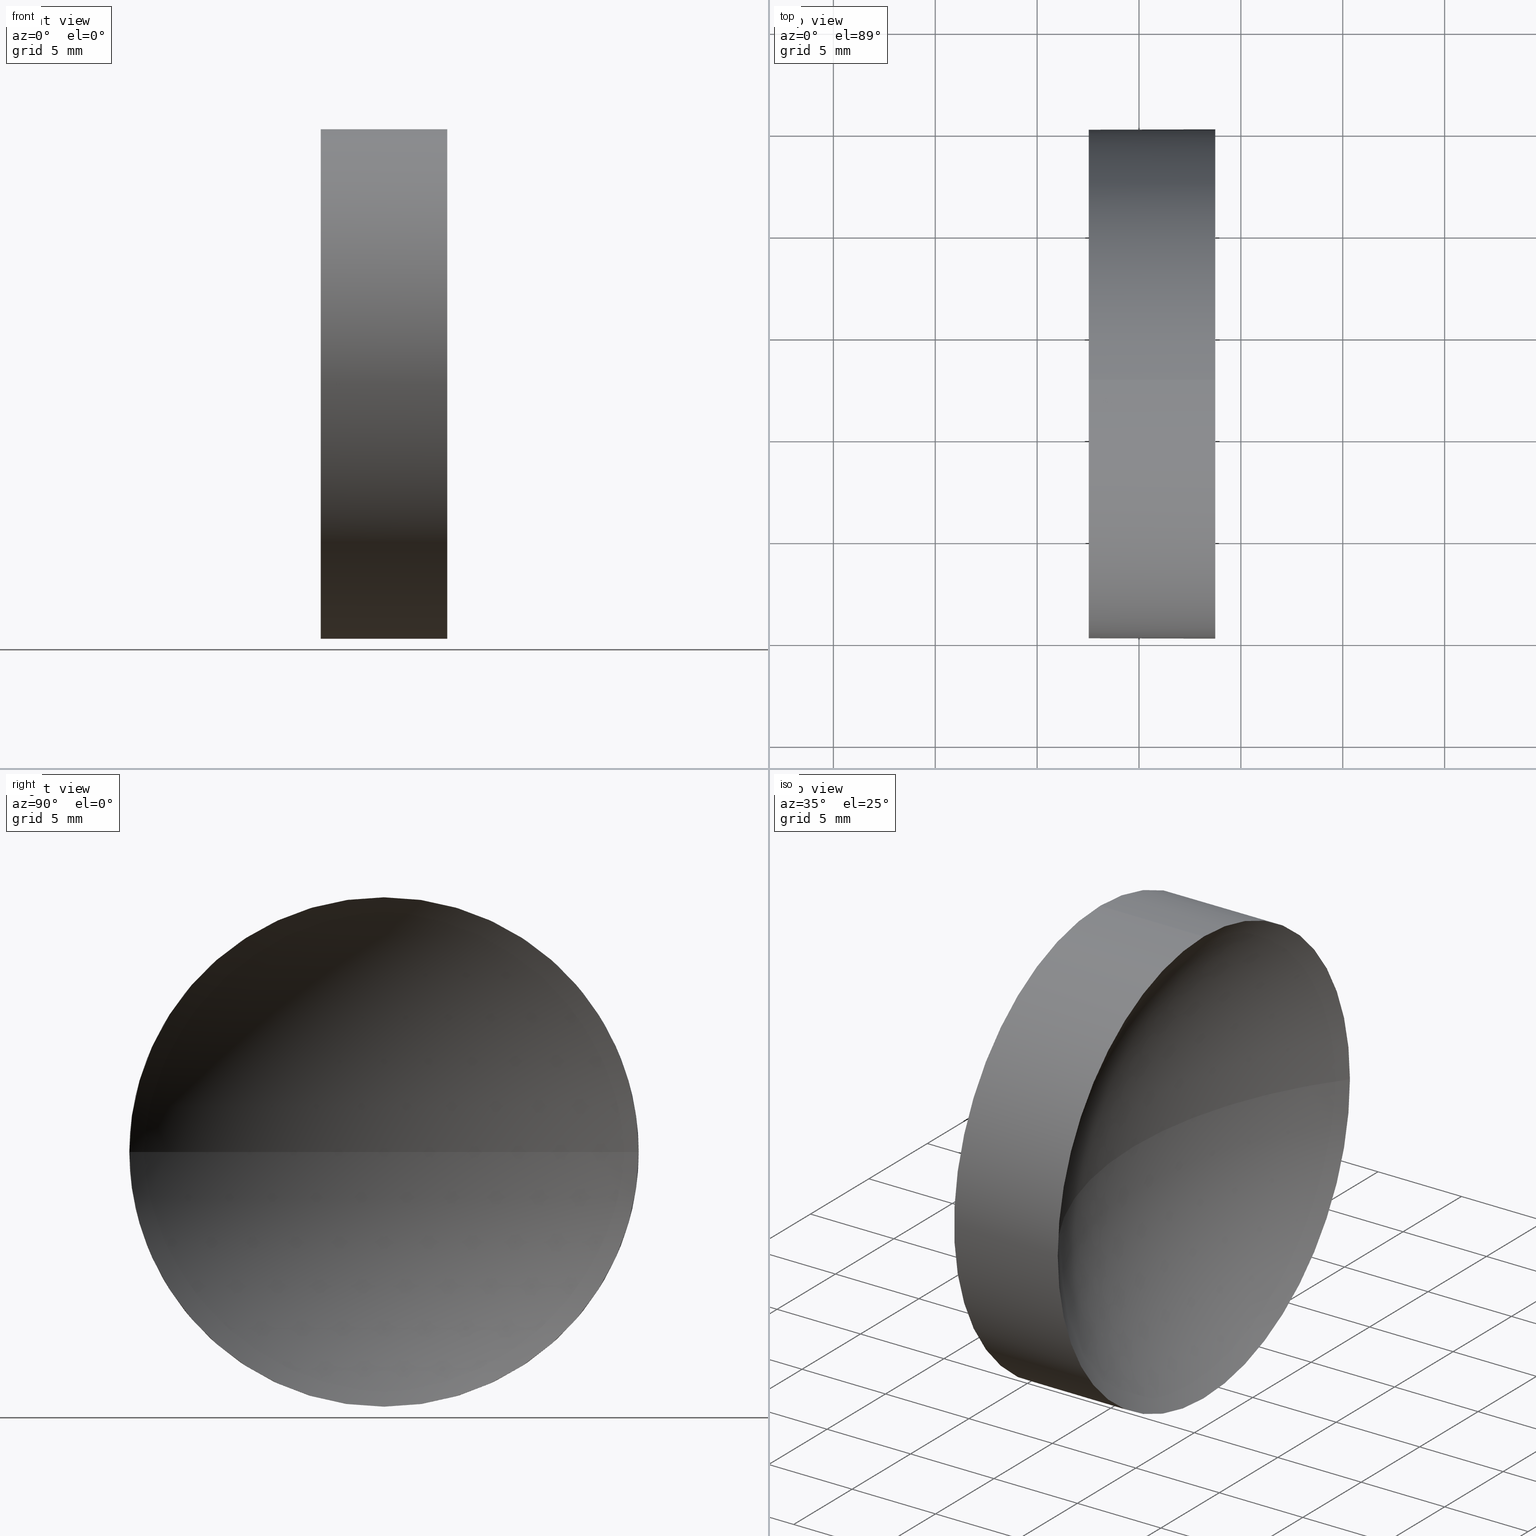
[diagram: canonical four-view strip — front | top / right | iso, engineering-drawing reading convention]
A machine part, canonical four-view strip (front | top / right | iso — engineering-drawing reading convention). The complete STEP part file that produces these views, byte-faithful:
ISO-10303-21;
HEADER;
FILE_DESCRIPTION (( 'STEP AP214' ),
    '1' );
FILE_NAME ('120031.STEP',
    '2019-06-17T02:37:05',
    ( '' ),
    ( '' ),
    'SwSTEP 2.0',
    'SolidWorks 2016',
    '' );
FILE_SCHEMA (( 'AUTOMOTIVE_DESIGN' ));
ENDSEC;

DATA;
#1 = DIRECTION ( 'NONE',  ( -1.000000000000000000, -0.0000000000000000000, -0.0000000000000000000 ) ) ;
#2 = STYLED_ITEM ( 'NONE', ( #40 ), #111 ) ;
#3 = DIRECTION ( 'NONE',  ( 0.0000000000000000000, 0.0000000000000000000, 1.000000000000000000 ) ) ;
#4 = CIRCLE ( 'NONE', #84, 20.65000000000000200 ) ;
#5 = FILL_AREA_STYLE_COLOUR ( '', #110 ) ;
#6 = EDGE_LOOP ( 'NONE', ( #82, #152, #34, #138 ) ) ;
#7 =( LENGTH_UNIT ( ) NAMED_UNIT ( * ) SI_UNIT ( .MILLI., .METRE. ) );
#8 = DIRECTION ( 'NONE',  ( 0.0000000000000000000, 0.0000000000000000000, 1.000000000000000000 ) ) ;
#9 = CIRCLE ( 'NONE', #39, 12.49999999999999600 ) ;
#10 = EDGE_CURVE ( 'NONE', #161, #37, #140, .T. ) ;
#11 = CIRCLE ( 'NONE', #94, 20.65000000000000200 ) ;
#12 = FACE_OUTER_BOUND ( 'NONE', #6, .T. ) ;
#13 = SURFACE_STYLE_FILL_AREA ( #65 ) ;
#14 = ORIENTED_EDGE ( 'NONE', *, *, #24, .F. ) ;
#15 = ORIENTED_EDGE ( 'NONE', *, *, #173, .T. ) ;
#16 = CARTESIAN_POINT ( 'NONE',  ( 80.18233705252612300, 32.61076812922678400, 0.0000000000000000000 ) ) ;
#17 = DIRECTION ( 'NONE',  ( 0.0000000000000000000, 0.0000000000000000000, 1.000000000000000000 ) ) ;
#18 = SPHERICAL_SURFACE ( 'NONE', #184, 20.65000000000000200 ) ;
#19 = ORIENTED_EDGE ( 'NONE', *, *, #38, .T. ) ;
#20 =( LENGTH_UNIT ( ) NAMED_UNIT ( * ) SI_UNIT ( .MILLI., .METRE. ) );
#21 = APPLICATION_PROTOCOL_DEFINITION ( 'draft international standard', 'automotive_design', 1998, #176 ) ;
#22 = CYLINDRICAL_SURFACE ( 'NONE', #81, 12.49999999999999600 ) ;
#23 = VERTEX_POINT ( 'NONE', #115 ) ;
#24 = EDGE_CURVE ( 'NONE', #23, #183, #171, .T. ) ;
#25 = MECHANICAL_DESIGN_GEOMETRIC_PRESENTATION_REPRESENTATION (  '', ( #105 ), #164 ) ;
#26 = ORIENTED_EDGE ( 'NONE', *, *, #10, .T. ) ;
#27 = CARTESIAN_POINT ( 'NONE',  ( 63.74541215764386900, 32.61076812922678400, -12.49999999999999600 ) ) ;
#28 = CARTESIAN_POINT ( 'NONE',  ( 57.53233705252611700, 32.61076812922678400, 0.0000000000000000000 ) ) ;
#29 = ORIENTED_EDGE ( 'NONE', *, *, #185, .F. ) ;
#30 = EDGE_CURVE ( 'NONE', #101, #161, #95, .T. ) ;
#31 = PRESENTATION_LAYER_ASSIGNMENT (  '', '', ( #105 ) ) ;
#32 = DIRECTION ( 'NONE',  ( 0.0000000000000000000, 0.0000000000000000000, 1.000000000000000000 ) ) ;
#33 = DIRECTION ( 'NONE',  ( 0.0000000000000000000, -1.224646799147353200E-016, 1.000000000000000000 ) ) ;
#34 = ORIENTED_EDGE ( 'NONE', *, *, #67, .F. ) ;
#35 = DIRECTION ( 'NONE',  ( -1.000000000000000000, -0.0000000000000000000, -0.0000000000000000000 ) ) ;
#36 = DIRECTION ( 'NONE',  ( -1.000000000000000000, -0.0000000000000000000, -0.0000000000000000000 ) ) ;
#37 = VERTEX_POINT ( 'NONE', #27 ) ;
#38 = EDGE_CURVE ( 'NONE', #157, #101, #126, .T. ) ;
#39 = AXIS2_PLACEMENT_3D ( 'NONE', #28, #1, #104 ) ;
#40 = PRESENTATION_STYLE_ASSIGNMENT (( #64 ) ) ;
#41 = CYLINDRICAL_SURFACE ( 'NONE', #63, 12.49999999999999600 ) ;
#42 =( NAMED_UNIT ( * ) SI_UNIT ( $, .STERADIAN. ) SOLID_ANGLE_UNIT ( ) );
#43 = VECTOR ( 'NONE', #145, 1000.000000000000000 ) ;
#44 = AXIS2_PLACEMENT_3D ( 'NONE', #77, #146, #60 ) ;
#45 = DIRECTION ( 'NONE',  ( 0.0000000000000000000, 0.0000000000000000000, 1.000000000000000000 ) ) ;
#46 = CARTESIAN_POINT ( 'NONE',  ( 56.10091507999716500, 32.61076812922678400, -12.49999999999999600 ) ) ;
#47 = EDGE_CURVE ( 'NONE', #101, #23, #137, .T. ) ;
#48 = DIRECTION ( 'NONE',  ( 0.0000000000000000000, 0.0000000000000000000, 1.000000000000000000 ) ) ;
#49 = CARTESIAN_POINT ( 'NONE',  ( 56.10091507999716500, 32.61076812922678400, 12.49999999999999600 ) ) ;
#50 = DIRECTION ( 'NONE',  ( 1.000000000000000000, 0.0000000000000000000, 0.0000000000000000000 ) ) ;
#51 = FACE_OUTER_BOUND ( 'NONE', #73, .T. ) ;
#52 = FACE_OUTER_BOUND ( 'NONE', #93, .T. ) ;
#53 = AXIS2_PLACEMENT_3D ( 'NONE', #156, #86, #103 ) ;
#54 = SURFACE_STYLE_FILL_AREA ( #131 ) ;
#55 = CARTESIAN_POINT ( 'NONE',  ( 80.18233705252612300, 32.61076812922678400, 0.0000000000000000000 ) ) ;
#56 = CARTESIAN_POINT ( 'NONE',  ( 57.53233705252611700, 32.61076812922678400, -12.49999999999999600 ) ) ;
#57 = EDGE_LOOP ( 'NONE', ( #29, #15, #19, #181, #123 ) ) ;
#58 = CARTESIAN_POINT ( 'NONE',  ( 0.0000000000000000000, 0.0000000000000000000, 0.0000000000000000000 ) ) ;
#59 = AXIS2_PLACEMENT_3D ( 'NONE', #61, #35, #160 ) ;
#60 = DIRECTION ( 'NONE',  ( 0.0000000000000000000, 0.0000000000000000000, -1.000000000000000000 ) ) ;
#61 = CARTESIAN_POINT ( 'NONE',  ( 63.74541215764386900, 32.61076812922678400, 0.0000000000000000000 ) ) ;
#62 = FACE_OUTER_BOUND ( 'NONE', #57, .T. ) ;
#63 = AXIS2_PLACEMENT_3D ( 'NONE', #149, #178, #3 ) ;
#64 = SURFACE_STYLE_USAGE ( .BOTH. , #136 ) ;
#65 = FILL_AREA_STYLE ('',( #5 ) ) ;
#66 = VERTEX_POINT ( 'NONE', #148 ) ;
#67 = EDGE_CURVE ( 'NONE', #157, #66, #11, .T. ) ;
#68 = ORIENTED_EDGE ( 'NONE', *, *, #166, .T. ) ;
#69 = AXIS2_PLACEMENT_3D ( 'NONE', #58, #8, #50 ) ;
#70 = ADVANCED_FACE ( 'NONE', ( #52 ), #41, .T. ) ;
#71 = ORIENTED_EDGE ( 'NONE', *, *, #30, .T. ) ;
#72 = AXIS2_PLACEMENT_3D ( 'NONE', #133, #134, #48 ) ;
#73 = EDGE_LOOP ( 'NONE', ( #96, #68 ) ) ;
#74 = ADVANCED_FACE ( 'NONE', ( #62 ), #22, .T. ) ;
#75 = DIRECTION ( 'NONE',  ( -1.000000000000000000, -0.0000000000000000000, -0.0000000000000000000 ) ) ;
#76 = SHAPE_DEFINITION_REPRESENTATION ( #97, #111 ) ;
#77 = CARTESIAN_POINT ( 'NONE',  ( 57.53233705252611700, 32.61076812922678400, 0.0000000000000000000 ) ) ;
#78 = FILL_AREA_STYLE_COLOUR ( '', #163 ) ;
#79 =( NAMED_UNIT ( * ) PLANE_ANGLE_UNIT ( ) SI_UNIT ( $, .RADIAN. ) );
#80 = PRODUCT ( '120031', '120031', '', ( #109 ) ) ;
#81 = AXIS2_PLACEMENT_3D ( 'NONE', #172, #114, #32 ) ;
#82 = ORIENTED_EDGE ( 'NONE', *, *, #10, .F. ) ;
#83 = CIRCLE ( 'NONE', #151, 12.49999999999999600 ) ;
#84 = AXIS2_PLACEMENT_3D ( 'NONE', #55, #33, #155 ) ;
#85 = ORIENTED_EDGE ( 'NONE', *, *, #30, .F. ) ;
#86 = DIRECTION ( 'NONE',  ( -1.000000000000000000, -0.0000000000000000000, -0.0000000000000000000 ) ) ;
#87 = DIRECTION ( 'NONE',  ( 0.0000000000000000000, 0.0000000000000000000, -1.000000000000000000 ) ) ;
#88 =( NAMED_UNIT ( * ) SI_UNIT ( $, .STERADIAN. ) SOLID_ANGLE_UNIT ( ) );
#89 = ORIENTED_EDGE ( 'NONE', *, *, #185, .T. ) ;
#90 =( GEOMETRIC_REPRESENTATION_CONTEXT ( 3 ) GLOBAL_UNCERTAINTY_ASSIGNED_CONTEXT ( ( #150 ) ) GLOBAL_UNIT_ASSIGNED_CONTEXT ( ( #168, #79, #88 ) ) REPRESENTATION_CONTEXT ( 'NONE', 'WORKASPACE' ) );
#91 = APPLICATION_PROTOCOL_DEFINITION ( 'draft international standard', 'automotive_design', 1998, #174 ) ;
#92 = DIRECTION ( 'NONE',  ( 0.0000000000000000000, 0.0000000000000000000, 1.000000000000000000 ) ) ;
#93 = EDGE_LOOP ( 'NONE', ( #26, #89, #14, #165, #71 ) ) ;
#94 = AXIS2_PLACEMENT_3D ( 'NONE', #16, #87, #116 ) ;
#95 = CIRCLE ( 'NONE', #59, 12.49999999999999600 ) ;
#96 = ORIENTED_EDGE ( 'NONE', *, *, #24, .T. ) ;
#97 = PRODUCT_DEFINITION_SHAPE ( 'NONE', 'NONE',  #99 ) ;
#98 = VECTOR ( 'NONE', #36, 1000.000000000000000 ) ;
#99 = PRODUCT_DEFINITION ( 'δ֪', '', #124, #179 ) ;
#100 = MANIFOLD_SOLID_BREP ( '��ת1', #177 ) ;
#101 = VERTEX_POINT ( 'NONE', #127 ) ;
#102 =( NAMED_UNIT ( * ) PLANE_ANGLE_UNIT ( ) SI_UNIT ( $, .RADIAN. ) );
#103 = DIRECTION ( 'NONE',  ( 0.0000000000000000000, 0.0000000000000000000, 1.000000000000000000 ) ) ;
#104 = DIRECTION ( 'NONE',  ( 0.0000000000000000000, 0.0000000000000000000, 1.000000000000000000 ) ) ;
#105 = STYLED_ITEM ( 'NONE', ( #117 ), #100 ) ;
#106 = CARTESIAN_POINT ( 'NONE',  ( 63.74541215764386900, 20.11076812922679100, 0.0000000000000000000 ) ) ;
#107 = DIRECTION ( 'NONE',  ( 0.0000000000000000000, -1.000000000000000000, 0.0000000000000000000 ) ) ;
#108 =( NAMED_UNIT ( * ) PLANE_ANGLE_UNIT ( ) SI_UNIT ( $, .RADIAN. ) );
#109 = PRODUCT_CONTEXT ( 'NONE', #174, 'mechanical' ) ;
#110 = COLOUR_RGB ( '',1.000000000000000000, 1.000000000000000000, 1.000000000000000000 ) ;
#111 = ADVANCED_BREP_SHAPE_REPRESENTATION ( '120031', ( #100, #69 ), #90 ) ;
#112 = SPHERICAL_SURFACE ( 'NONE', #182, 20.65000000000000200 ) ;
#113 = AXIS2_PLACEMENT_3D ( 'NONE', #119, #120, #92 ) ;
#114 = DIRECTION ( 'NONE',  ( -1.000000000000000000, -0.0000000000000000000, -0.0000000000000000000 ) ) ;
#115 = CARTESIAN_POINT ( 'NONE',  ( 57.53233705252611700, 32.61076812922678400, 12.49999999999999600 ) ) ;
#116 = DIRECTION ( 'NONE',  ( -1.000000000000000000, 0.0000000000000000000, 0.0000000000000000000 ) ) ;
#117 = PRESENTATION_STYLE_ASSIGNMENT (( #170 ) ) ;
#118 = PLANE ( 'NONE',  #44 ) ;
#119 = CARTESIAN_POINT ( 'NONE',  ( 63.74541215764386900, 32.61076812922678400, 0.0000000000000000000 ) ) ;
#120 = DIRECTION ( 'NONE',  ( -1.000000000000000000, -0.0000000000000000000, -0.0000000000000000000 ) ) ;
#121 = UNCERTAINTY_MEASURE_WITH_UNIT (LENGTH_MEASURE( 1.000000000000000100E-005 ), #7, 'distance_accuracy_value', 'NONE');
#122 = PRODUCT_RELATED_PRODUCT_CATEGORY ( 'part', '', ( #80 ) ) ;
#123 = ORIENTED_EDGE ( 'NONE', *, *, #166, .F. ) ;
#124 = PRODUCT_DEFINITION_FORMATION_WITH_SPECIFIED_SOURCE ( '�κ�', '', #80, .NOT_KNOWN. ) ;
#125 = ORIENTED_EDGE ( 'NONE', *, *, #67, .T. ) ;
#126 = CIRCLE ( 'NONE', #113, 12.49999999999999600 ) ;
#127 = CARTESIAN_POINT ( 'NONE',  ( 63.74541215764386900, 32.61076812922678400, 12.49999999999999600 ) ) ;
#128 = CARTESIAN_POINT ( 'NONE',  ( 80.18233705252612300, 32.61076812922678400, 0.0000000000000000000 ) ) ;
#129 = SURFACE_SIDE_STYLE ('',( #54 ) ) ;
#130 = EDGE_LOOP ( 'NONE', ( #162, #85, #147, #125 ) ) ;
#131 = FILL_AREA_STYLE ('',( #78 ) ) ;
#132 = UNCERTAINTY_MEASURE_WITH_UNIT (LENGTH_MEASURE( 1.000000000000000100E-005 ), #20, 'distance_accuracy_value', 'NONE');
#133 = CARTESIAN_POINT ( 'NONE',  ( 57.53233705252611700, 32.61076812922678400, 0.0000000000000000000 ) ) ;
#134 = DIRECTION ( 'NONE',  ( -1.000000000000000000, -0.0000000000000000000, -0.0000000000000000000 ) ) ;
#135 = EDGE_CURVE ( 'NONE', #161, #66, #4, .T. ) ;
#136 = SURFACE_SIDE_STYLE ('',( #13 ) ) ;
#137 = LINE ( 'NONE', #49, #98 ) ;
#138 = ORIENTED_EDGE ( 'NONE', *, *, #173, .F. ) ;
#139 = LINE ( 'NONE', #46, #43 ) ;
#140 = CIRCLE ( 'NONE', #53, 12.49999999999999600 ) ;
#141 = ADVANCED_FACE ( 'NONE', ( #51 ), #118, .F. ) ;
#142 =( GEOMETRIC_REPRESENTATION_CONTEXT ( 3 ) GLOBAL_UNCERTAINTY_ASSIGNED_CONTEXT ( ( #121 ) ) GLOBAL_UNIT_ASSIGNED_CONTEXT ( ( #7, #108, #159 ) ) REPRESENTATION_CONTEXT ( 'NONE', 'WORKASPACE' ) );
#143 = CARTESIAN_POINT ( 'NONE',  ( 63.74541215764386900, 32.61076812922678400, 0.0000000000000000000 ) ) ;
#144 = CARTESIAN_POINT ( 'NONE',  ( 63.74541215764386900, 45.11076812922678400, 1.530808498934191100E-015 ) ) ;
#145 = DIRECTION ( 'NONE',  ( -1.000000000000000000, -0.0000000000000000000, -0.0000000000000000000 ) ) ;
#146 = DIRECTION ( 'NONE',  ( 1.000000000000000000, 0.0000000000000000000, 0.0000000000000000000 ) ) ;
#147 = ORIENTED_EDGE ( 'NONE', *, *, #38, .F. ) ;
#148 = CARTESIAN_POINT ( 'NONE',  ( 59.53233705252612400, 32.61076812922678400, 0.0000000000000000000 ) ) ;
#149 = CARTESIAN_POINT ( 'NONE',  ( 56.10091507999716500, 32.61076812922678400, 0.0000000000000000000 ) ) ;
#150 = UNCERTAINTY_MEASURE_WITH_UNIT (LENGTH_MEASURE( 1.000000000000000100E-005 ), #168, 'distance_accuracy_value', 'NONE');
#151 = AXIS2_PLACEMENT_3D ( 'NONE', #143, #75, #17 ) ;
#152 = ORIENTED_EDGE ( 'NONE', *, *, #135, .T. ) ;
#153 = DIRECTION ( 'NONE',  ( 0.0000000000000000000, -1.000000000000000000, 0.0000000000000000000 ) ) ;
#154 = ADVANCED_FACE ( 'NONE', ( #12 ), #112, .F. ) ;
#155 = DIRECTION ( 'NONE',  ( 0.0000000000000000000, -1.000000000000000000, -1.224646799147353200E-016 ) ) ;
#156 = CARTESIAN_POINT ( 'NONE',  ( 63.74541215764386900, 32.61076812922678400, 0.0000000000000000000 ) ) ;
#157 = VERTEX_POINT ( 'NONE', #106 ) ;
#158 = DIRECTION ( 'NONE',  ( 0.0000000000000000000, 0.0000000000000000000, 1.000000000000000000 ) ) ;
#159 =( NAMED_UNIT ( * ) SI_UNIT ( $, .STERADIAN. ) SOLID_ANGLE_UNIT ( ) );
#160 = DIRECTION ( 'NONE',  ( 0.0000000000000000000, 0.0000000000000000000, 1.000000000000000000 ) ) ;
#161 = VERTEX_POINT ( 'NONE', #144 ) ;
#162 = ORIENTED_EDGE ( 'NONE', *, *, #135, .F. ) ;
#163 = COLOUR_RGB ( '',1.000000000000000000, 1.000000000000000000, 1.000000000000000000 ) ;
#164 =( GEOMETRIC_REPRESENTATION_CONTEXT ( 3 ) GLOBAL_UNCERTAINTY_ASSIGNED_CONTEXT ( ( #132 ) ) GLOBAL_UNIT_ASSIGNED_CONTEXT ( ( #20, #102, #42 ) ) REPRESENTATION_CONTEXT ( 'NONE', 'WORKASPACE' ) );
#165 = ORIENTED_EDGE ( 'NONE', *, *, #47, .F. ) ;
#166 = EDGE_CURVE ( 'NONE', #183, #23, #9, .T. ) ;
#167 = ADVANCED_FACE ( 'NONE', ( #180 ), #18, .F. ) ;
#168 =( LENGTH_UNIT ( ) NAMED_UNIT ( * ) SI_UNIT ( .MILLI., .METRE. ) );
#169 = CARTESIAN_POINT ( 'NONE',  ( 80.18233705252612300, 32.61076812922678400, 0.0000000000000000000 ) ) ;
#170 = SURFACE_STYLE_USAGE ( .BOTH. , #129 ) ;
#171 = CIRCLE ( 'NONE', #72, 12.49999999999999600 ) ;
#172 = CARTESIAN_POINT ( 'NONE',  ( 56.10091507999716500, 32.61076812922678400, 0.0000000000000000000 ) ) ;
#173 = EDGE_CURVE ( 'NONE', #37, #157, #83, .T. ) ;
#174 = APPLICATION_CONTEXT ( 'automotive_design' ) ;
#175 = MECHANICAL_DESIGN_GEOMETRIC_PRESENTATION_REPRESENTATION (  '', ( #2 ), #142 ) ;
#176 = APPLICATION_CONTEXT ( 'automotive_design' ) ;
#177 = CLOSED_SHELL ( 'NONE', ( #70, #154, #167, #74, #141 ) ) ;
#178 = DIRECTION ( 'NONE',  ( -1.000000000000000000, -0.0000000000000000000, -0.0000000000000000000 ) ) ;
#179 = PRODUCT_DEFINITION_CONTEXT ( 'detailed design', #176, 'design' ) ;
#180 = FACE_OUTER_BOUND ( 'NONE', #130, .T. ) ;
#181 = ORIENTED_EDGE ( 'NONE', *, *, #47, .T. ) ;
#182 = AXIS2_PLACEMENT_3D ( 'NONE', #169, #158, #153 ) ;
#183 = VERTEX_POINT ( 'NONE', #56 ) ;
#184 = AXIS2_PLACEMENT_3D ( 'NONE', #128, #45, #107 ) ;
#185 = EDGE_CURVE ( 'NONE', #37, #183, #139, .T. ) ;
#186 = PRESENTATION_LAYER_ASSIGNMENT (  '', '', ( #2 ) ) ;
ENDSEC;
END-ISO-10303-21;
